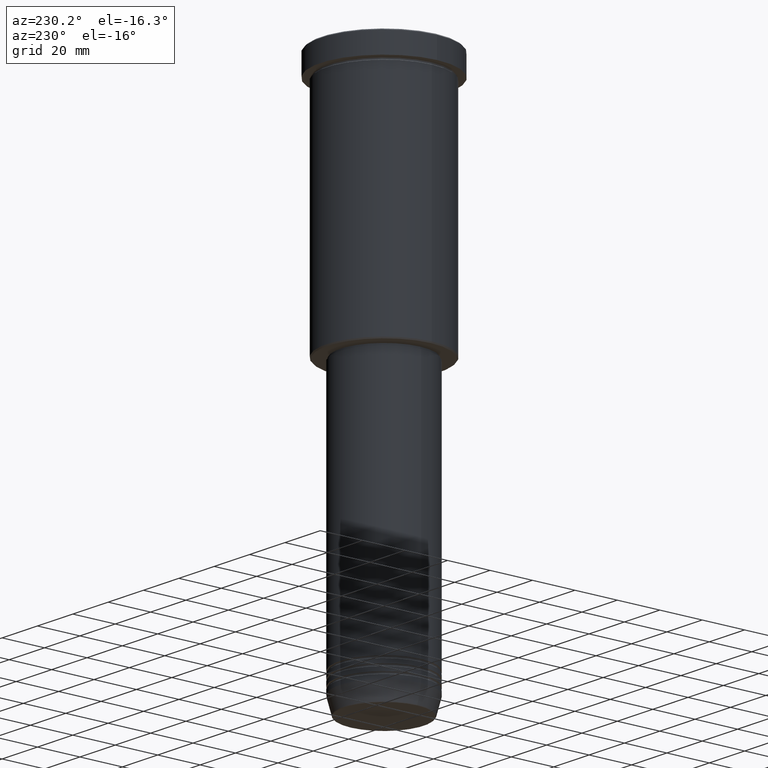
[diagram: clean part render]
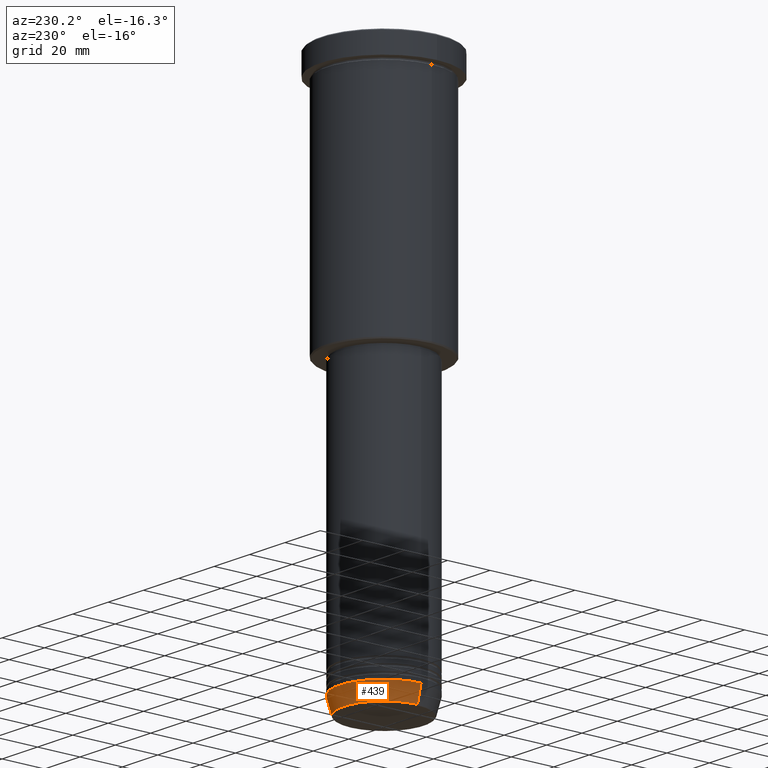
[diagram: same view with one face highlighted and labeled with its STEP entity id]
A machine part, auxiliary view. The second image highlights one B-rep face of the part: STEP entity #439.
In plain terms, the highlighted conical surface has half-angle 15 deg.
Its self-contained STEP definition (entity closure, byte-faithful):
#8 = VECTOR ( 'NONE', #444, 1000.000000000000000 ) ;
#15 = CARTESIAN_POINT ( 'NONE',  ( 21.00000000000000000, 0.000000000000000000, -243.0000000000000284 ) ) ;
#23 = DIRECTION ( 'NONE',  ( 1.000000000000000000, 0.000000000000000000, 0.000000000000000000 ) ) ;
#71 = AXIS2_PLACEMENT_3D ( 'NONE', #735, #346, #709 ) ;
#183 = CONICAL_SURFACE ( 'NONE', #660, 21.00000000000000000, 0.2617993877991500740 ) ;
#187 = AXIS2_PLACEMENT_3D ( 'NONE', #205, #482, #23 ) ;
#196 = VERTEX_POINT ( 'NONE', #15 ) ;
#205 = CARTESIAN_POINT ( 'NONE',  ( 0.000000000000000000, 0.000000000000000000, -250.6294095225512422 ) ) ;
#209 = EDGE_CURVE ( 'NONE', #1073, #700, #477, .T. ) ;
#243 = DIRECTION ( 'NONE',  ( 1.000000000000000000, 0.000000000000000000, 0.000000000000000000 ) ) ;
#255 = ORIENTED_EDGE ( 'NONE', *, *, #209, .T. ) ;
#260 = DIRECTION ( 'NONE',  ( -0.000000000000000000, -0.000000000000000000, 1.000000000000000000 ) ) ;
#284 = DIRECTION ( 'NONE',  ( -0.2588190451025213501, 3.169619151431772337E-17, 0.9659258262890680902 ) ) ;
#286 = CARTESIAN_POINT ( 'NONE',  ( 18.95570587970606624, 0.000000000000000000, -250.6294095225512422 ) ) ;
#346 = DIRECTION ( 'NONE',  ( -0.000000000000000000, -0.000000000000000000, 1.000000000000000000 ) ) ;
#359 = EDGE_CURVE ( 'NONE', #1119, #1073, #711, .T. ) ;
#377 = CIRCLE ( 'NONE', #71, 21.00000000000000000 ) ;
#423 = EDGE_CURVE ( 'NONE', #1119, #196, #974, .T. ) ;
#438 = CARTESIAN_POINT ( 'NONE',  ( 0.000000000000000000, 0.000000000000000000, -243.0000000000000284 ) ) ;
#439 = ADVANCED_FACE ( 'NONE', ( #1164 ), #183, .T. ) ;
#444 = DIRECTION ( 'NONE',  ( 0.2588190451025213501, 0.000000000000000000, 0.9659258262890680902 ) ) ;
#477 = LINE ( 'NONE', #1098, #906 ) ;
#482 = DIRECTION ( 'NONE',  ( -0.000000000000000000, -0.000000000000000000, 1.000000000000000000 ) ) ;
#528 = EDGE_LOOP ( 'NONE', ( #904, #255, #773, #1170 ) ) ;
#660 = AXIS2_PLACEMENT_3D ( 'NONE', #438, #260, #243 ) ;
#700 = VERTEX_POINT ( 'NONE', #962 ) ;
#709 = DIRECTION ( 'NONE',  ( 1.000000000000000000, 0.000000000000000000, 0.000000000000000000 ) ) ;
#711 = CIRCLE ( 'NONE', #187, 18.95570587970606624 ) ;
#735 = CARTESIAN_POINT ( 'NONE',  ( 0.000000000000000000, 0.000000000000000000, -243.0000000000000284 ) ) ;
#773 = ORIENTED_EDGE ( 'NONE', *, *, #888, .F. ) ;
#888 = EDGE_CURVE ( 'NONE', #196, #700, #377, .T. ) ;
#904 = ORIENTED_EDGE ( 'NONE', *, *, #359, .T. ) ;
#906 = VECTOR ( 'NONE', #284, 1000.000000000000000 ) ;
#962 = CARTESIAN_POINT ( 'NONE',  ( -21.00000000000000000, 2.571758278209441661E-15, -243.0000000000000284 ) ) ;
#974 = LINE ( 'NONE', #1158, #8 ) ;
#1073 = VERTEX_POINT ( 'NONE', #1104 ) ;
#1098 = CARTESIAN_POINT ( 'NONE',  ( -21.00000000000000000, 2.571758278209441661E-15, -243.0000000000000284 ) ) ;
#1104 = CARTESIAN_POINT ( 'NONE',  ( -18.95570587970606624, 2.446581365662756125E-15, -250.6294095225512422 ) ) ;
#1119 = VERTEX_POINT ( 'NONE', #286 ) ;
#1158 = CARTESIAN_POINT ( 'NONE',  ( 21.00000000000000000, 0.000000000000000000, -243.0000000000000284 ) ) ;
#1164 = FACE_OUTER_BOUND ( 'NONE', #528, .T. ) ;
#1170 = ORIENTED_EDGE ( 'NONE', *, *, #423, .F. ) ;